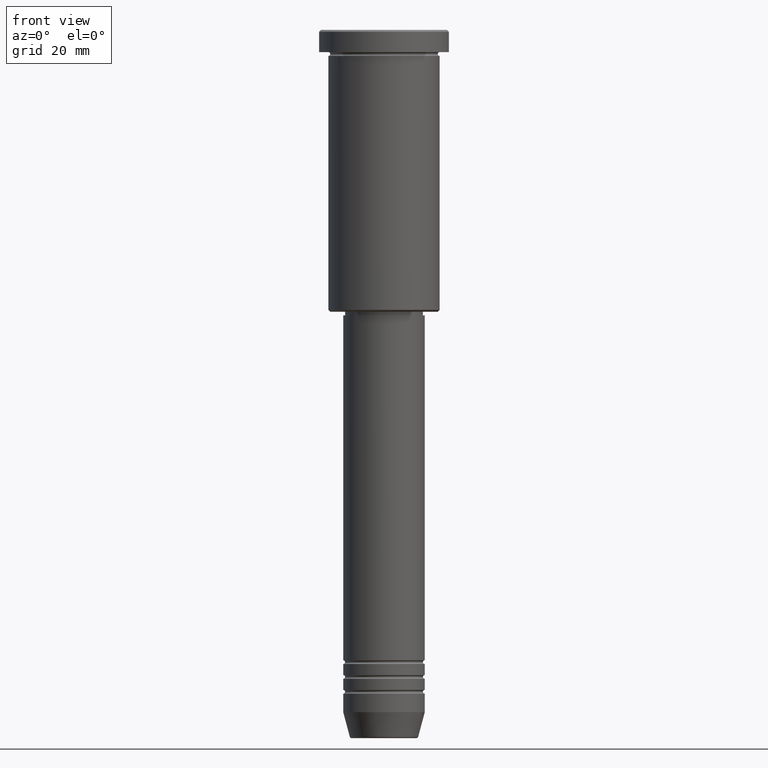
[diagram: clean part render]
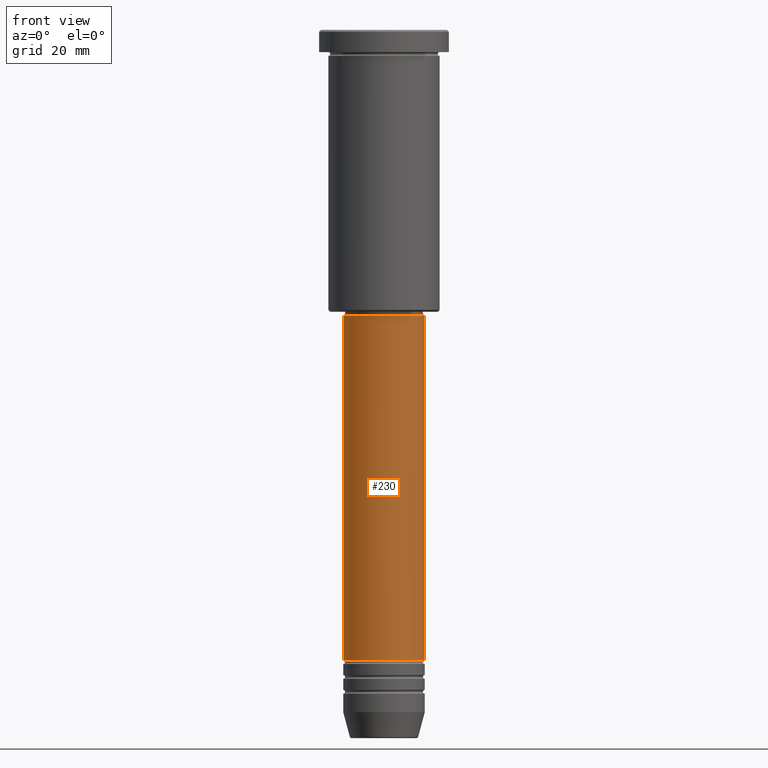
[diagram: same view with one face highlighted and labeled with its STEP entity id]
A machine part, front view. The second image highlights one B-rep face of the part: STEP entity #230.
In plain terms, the highlighted cylindrical surface (partial cylindrical patch) has radius 11 mm, axis along (-0, -0, 1).
Its self-contained STEP definition (entity closure, byte-faithful):
#33 = DIRECTION ( 'NONE',  ( -0.000000000000000000, -0.000000000000000000, 1.000000000000000000 ) ) ;
#68 = CARTESIAN_POINT ( 'NONE',  ( 11.00000000000000000, 0.000000000000000000, -169.9999999999999147 ) ) ;
#73 = LINE ( 'NONE', #567, #102 ) ;
#96 = ORIENTED_EDGE ( 'NONE', *, *, #1067, .F. ) ;
#102 = VECTOR ( 'NONE', #1026, 1000.000000000000000 ) ;
#146 = CIRCLE ( 'NONE', #449, 11.00000000000000000 ) ;
#207 = CARTESIAN_POINT ( 'NONE',  ( 0.000000000000000000, 0.000000000000000000, 0.000000000000000000 ) ) ;
#210 = CARTESIAN_POINT ( 'NONE',  ( 0.000000000000000000, 0.000000000000000000, -169.9999999999999147 ) ) ;
#211 = ORIENTED_EDGE ( 'NONE', *, *, #424, .T. ) ;
#226 = CIRCLE ( 'NONE', #580, 11.00000000000000000 ) ;
#230 = ADVANCED_FACE ( 'NONE', ( #294 ), #659, .T. ) ;
#286 = ORIENTED_EDGE ( 'NONE', *, *, #676, .T. ) ;
#294 = FACE_OUTER_BOUND ( 'NONE', #573, .T. ) ;
#389 = VERTEX_POINT ( 'NONE', #1099 ) ;
#424 = EDGE_CURVE ( 'NONE', #1165, #1020, #73, .T. ) ;
#449 = AXIS2_PLACEMENT_3D ( 'NONE', #210, #572, #937 ) ;
#506 = CARTESIAN_POINT ( 'NONE',  ( 0.000000000000000000, 0.000000000000000000, -77.00000000000004263 ) ) ;
#567 = CARTESIAN_POINT ( 'NONE',  ( 11.00000000000000000, 0.000000000000000000, 0.000000000000000000 ) ) ;
#572 = DIRECTION ( 'NONE',  ( -0.000000000000000000, -0.000000000000000000, 1.000000000000000000 ) ) ;
#573 = EDGE_LOOP ( 'NONE', ( #1037, #286, #211, #96 ) ) ;
#580 = AXIS2_PLACEMENT_3D ( 'NONE', #506, #1035, #1043 ) ;
#659 = CYLINDRICAL_SURFACE ( 'NONE', #735, 11.00000000000000000 ) ;
#660 = CARTESIAN_POINT ( 'NONE',  ( 11.00000000000000000, 0.000000000000000000, -77.00000000000004263 ) ) ;
#676 = EDGE_CURVE ( 'NONE', #962, #1165, #146, .T. ) ;
#701 = EDGE_CURVE ( 'NONE', #962, #389, #704, .T. ) ;
#704 = LINE ( 'NONE', #980, #975 ) ;
#735 = AXIS2_PLACEMENT_3D ( 'NONE', #207, #33, #784 ) ;
#784 = DIRECTION ( 'NONE',  ( 1.000000000000000000, 0.000000000000000000, 0.000000000000000000 ) ) ;
#916 = CARTESIAN_POINT ( 'NONE',  ( -11.00000000000000000, 1.347111479062088405E-15, -169.9999999999999147 ) ) ;
#937 = DIRECTION ( 'NONE',  ( 1.000000000000000000, 0.000000000000000000, 0.000000000000000000 ) ) ;
#962 = VERTEX_POINT ( 'NONE', #916 ) ;
#975 = VECTOR ( 'NONE', #1160, 1000.000000000000000 ) ;
#980 = CARTESIAN_POINT ( 'NONE',  ( -11.00000000000000000, 1.347111479062088405E-15, 0.000000000000000000 ) ) ;
#1020 = VERTEX_POINT ( 'NONE', #660 ) ;
#1026 = DIRECTION ( 'NONE',  ( -0.000000000000000000, -0.000000000000000000, 1.000000000000000000 ) ) ;
#1035 = DIRECTION ( 'NONE',  ( -0.000000000000000000, -0.000000000000000000, 1.000000000000000000 ) ) ;
#1037 = ORIENTED_EDGE ( 'NONE', *, *, #701, .F. ) ;
#1043 = DIRECTION ( 'NONE',  ( 1.000000000000000000, 0.000000000000000000, 0.000000000000000000 ) ) ;
#1067 = EDGE_CURVE ( 'NONE', #389, #1020, #226, .T. ) ;
#1099 = CARTESIAN_POINT ( 'NONE',  ( -11.00000000000000000, 1.347111479062088405E-15, -77.00000000000004263 ) ) ;
#1160 = DIRECTION ( 'NONE',  ( -0.000000000000000000, -0.000000000000000000, 1.000000000000000000 ) ) ;
#1165 = VERTEX_POINT ( 'NONE', #68 ) ;